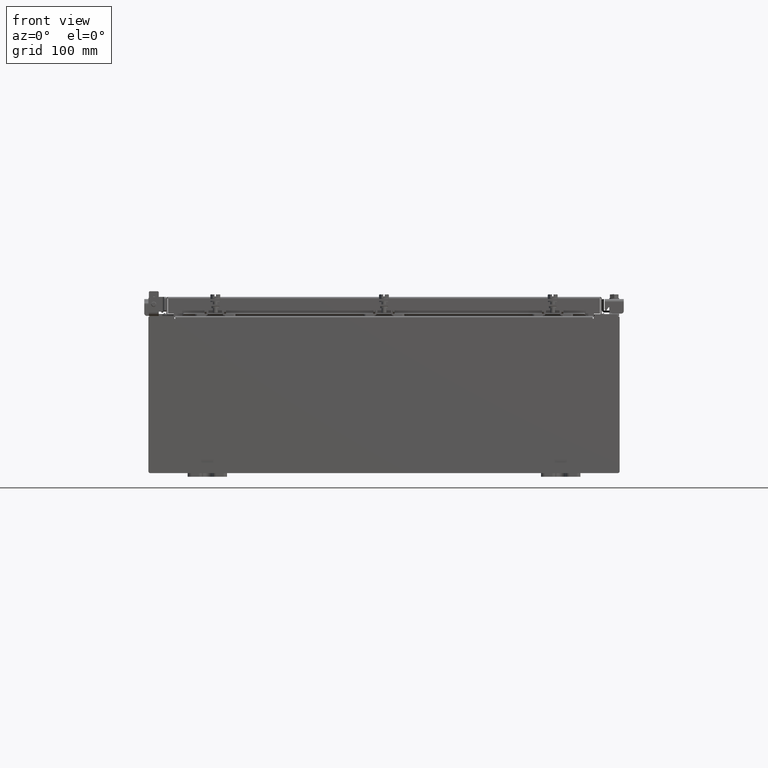
[diagram: clean part render]
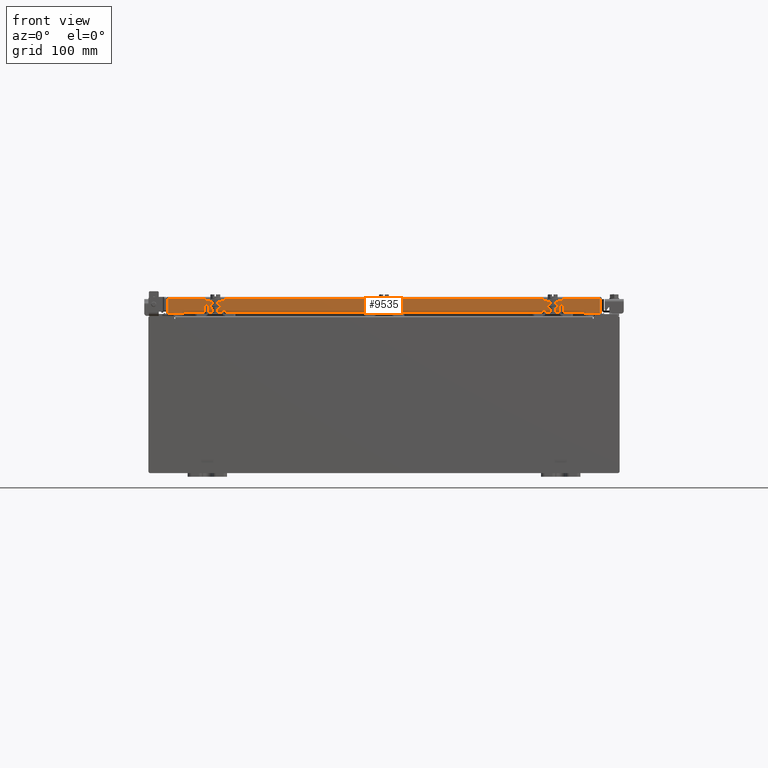
[diagram: same view with one face highlighted and labeled with its STEP entity id]
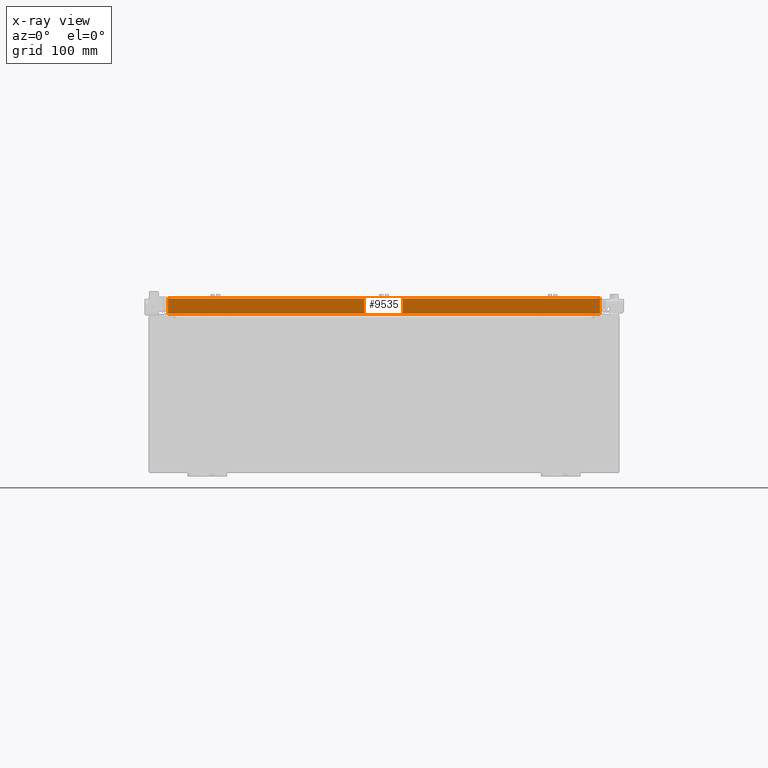
[diagram: x-ray of the same camera — body ghosted, the highlighted face saturated]
A machine part, front view. The second image highlights one B-rep face of the part: STEP entity #9535.
The next image is the same camera in x-ray: the body ghosted, the highlighted face saturated — about 0% of this face is hidden behind the body in this view.
In plain terms, the highlighted planar face has unit normal (-0, 1, -0).
Its self-contained STEP definition (entity closure, byte-faithful):
#811 = CARTESIAN_POINT ( 'NONE',  ( 11.09399999999999800, -11.09400000000000100, -0.8499999999999999800 ) ) ;
#1544 = LINE ( 'NONE', #4617, #5578 ) ;
#2102 = VERTEX_POINT ( 'NONE', #18511 ) ;
#2547 = DIRECTION ( 'NONE',  ( -1.000000000000000000, 4.379057701015054300E-047, 1.231227687788112800E-016 ) ) ;
#2885 = DIRECTION ( 'NONE',  ( 0.0000000000000000000, -2.818880942772360100E-015, -1.000000000000000000 ) ) ;
#2942 = AXIS2_PLACEMENT_3D ( 'NONE', #15561, #5107, #17381 ) ;
#3360 = PLANE ( 'NONE',  #2942 ) ;
#4534 = LINE ( 'NONE', #20391, #17968 ) ;
#4617 = CARTESIAN_POINT ( 'NONE',  ( -11.00515786437626700, -11.09399999999999900, 3.168943672650545400E-014 ) ) ;
#5107 = DIRECTION ( 'NONE',  ( -3.470684265319587400E-031, 1.000000000000000000, -2.818880942772360100E-015 ) ) ;
#5152 = CARTESIAN_POINT ( 'NONE',  ( -11.00515786437626400, -11.09399999999999900, -0.08770000000000026400 ) ) ;
#5525 = CARTESIAN_POINT ( 'NONE',  ( -11.00515786437626400, -11.09400000000000100, -0.8499999999999966500 ) ) ;
#5578 = VECTOR ( 'NONE', #2885, 39.37007874015748100 ) ;
#5660 = VECTOR ( 'NONE', #21594, 39.37007874015748100 ) ;
#5737 = ORIENTED_EDGE ( 'NONE', *, *, #13818, .F. ) ;
#6447 = VERTEX_POINT ( 'NONE', #5152 ) ;
#6787 = ORIENTED_EDGE ( 'NONE', *, *, #19102, .F. ) ;
#7067 = VECTOR ( 'NONE', #2547, 39.37007874015748100 ) ;
#7795 = ORIENTED_EDGE ( 'NONE', *, *, #8727, .F. ) ;
#8727 = EDGE_CURVE ( 'NONE', #2102, #16713, #18476, .T. ) ;
#9398 = DIRECTION ( 'NONE',  ( -0.0000000000000000000, -2.818880942772360100E-015, -1.000000000000000000 ) ) ;
#9535 = ADVANCED_FACE ( 'NONE', ( #12709 ), #3360, .F. ) ;
#9723 = VERTEX_POINT ( 'NONE', #5525 ) ;
#10328 = CARTESIAN_POINT ( 'NONE',  ( 11.09399999999999800, -11.09400000000000100, -0.8499999999999999800 ) ) ;
#10555 = LINE ( 'NONE', #10328, #16600 ) ;
#11007 = CARTESIAN_POINT ( 'NONE',  ( 11.00515786437626700, -11.09399999999999900, -0.07470000000000015500 ) ) ;
#11672 = DIRECTION ( 'NONE',  ( 1.000000000000000000, 3.470684265319588300E-031, -9.460278716967662300E-046 ) ) ;
#12709 = FACE_OUTER_BOUND ( 'NONE', #20578, .T. ) ;
#12850 = EDGE_CURVE ( 'NONE', #18518, #9723, #16439, .T. ) ;
#12851 = CARTESIAN_POINT ( 'NONE',  ( 10.25515786437626400, -11.09399999999999400, -0.8500000000000020900 ) ) ;
#13818 = EDGE_CURVE ( 'NONE', #17438, #18518, #15580, .T. ) ;
#13840 = VECTOR ( 'NONE', #9398, 39.37007874015748100 ) ;
#14091 = ORIENTED_EDGE ( 'NONE', *, *, #19717, .T. ) ;
#14588 = EDGE_CURVE ( 'NONE', #16713, #17438, #10555, .T. ) ;
#15561 = CARTESIAN_POINT ( 'NONE',  ( 0.0000000000000000000, -11.09399999999999900, 3.168943672650545400E-014 ) ) ;
#15580 = LINE ( 'NONE', #12851, #5660 ) ;
#16439 = LINE ( 'NONE', #811, #7067 ) ;
#16600 = VECTOR ( 'NONE', #22452, 39.37007874015748100 ) ;
#16713 = VERTEX_POINT ( 'NONE', #18014 ) ;
#17381 = DIRECTION ( 'NONE',  ( 0.0000000000000000000, 2.818880942772360100E-015, 1.000000000000000000 ) ) ;
#17404 = ORIENTED_EDGE ( 'NONE', *, *, #14588, .F. ) ;
#17438 = VERTEX_POINT ( 'NONE', #21464 ) ;
#17968 = VECTOR ( 'NONE', #11672, 39.37007874015748100 ) ;
#18014 = CARTESIAN_POINT ( 'NONE',  ( 11.00515786437626700, -11.09400000000000100, -0.8499999999999999800 ) ) ;
#18476 = LINE ( 'NONE', #11007, #13840 ) ;
#18511 = CARTESIAN_POINT ( 'NONE',  ( 11.00515786437626700, -11.09399999999999900, -0.08770000000000026400 ) ) ;
#18518 = VERTEX_POINT ( 'NONE', #18901 ) ;
#18901 = CARTESIAN_POINT ( 'NONE',  ( -10.25515786437626400, -11.09399999999999400, -0.8500000000000020900 ) ) ;
#19102 = EDGE_CURVE ( 'NONE', #6447, #2102, #4534, .T. ) ;
#19717 = EDGE_CURVE ( 'NONE', #6447, #9723, #1544, .T. ) ;
#20391 = CARTESIAN_POINT ( 'NONE',  ( 11.09399999999999800, -11.09399999999999900, -0.08770000000000026400 ) ) ;
#20578 = EDGE_LOOP ( 'NONE', ( #6787, #14091, #21877, #5737, #17404, #7795 ) ) ;
#21464 = CARTESIAN_POINT ( 'NONE',  ( 10.25515786437626400, -11.09399999999999400, -0.8500000000000020900 ) ) ;
#21594 = DIRECTION ( 'NONE',  ( -1.000000000000000000, 0.0000000000000000000, 0.0000000000000000000 ) ) ;
#21877 = ORIENTED_EDGE ( 'NONE', *, *, #12850, .F. ) ;
#22452 = DIRECTION ( 'NONE',  ( -1.000000000000000000, 4.379057701015054300E-047, 1.231227687788112800E-016 ) ) ;